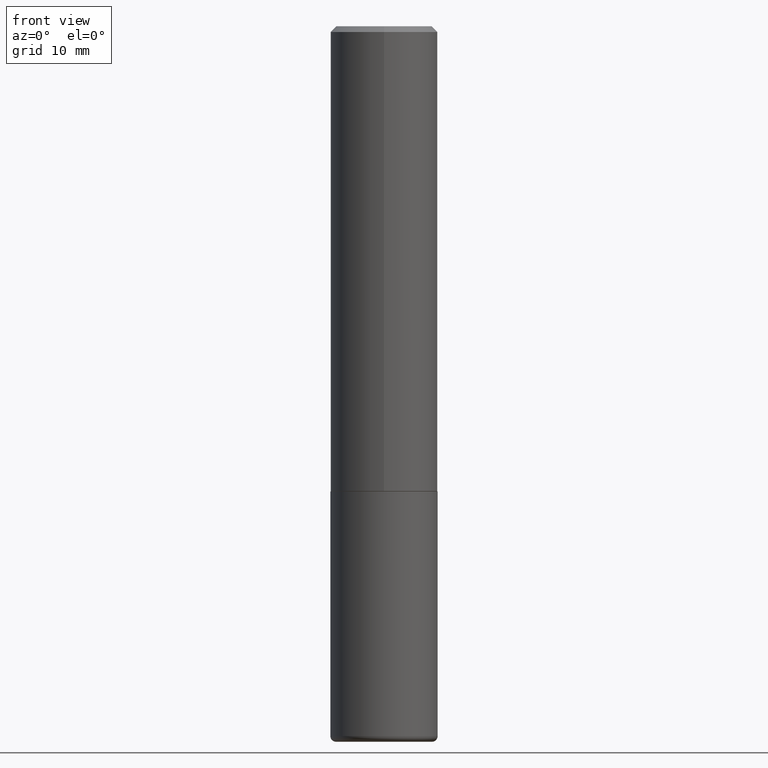
[diagram: clean part render]
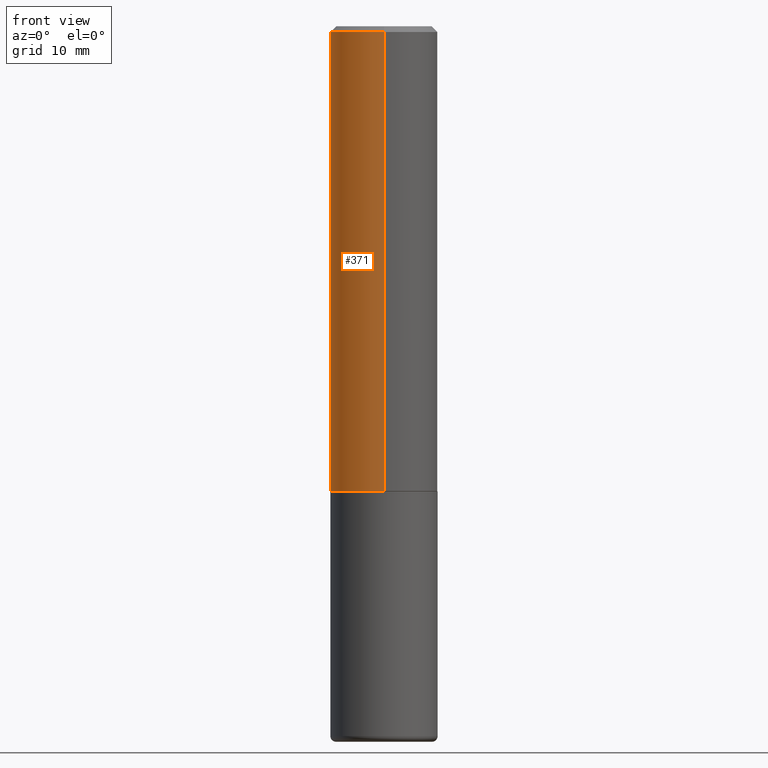
[diagram: same view with one face highlighted and labeled with its STEP entity id]
A machine part, front view. The second image highlights one B-rep face of the part: STEP entity #371.
In plain terms, the highlighted cylindrical surface (partial cylindrical patch) has radius 4.7625 mm, axis along (-0, 0, 1).
Its self-contained STEP definition (entity closure, byte-faithful):
#17 = ORIENTED_EDGE ( 'NONE', *, *, #253, .F. ) ;
#61 = CARTESIAN_POINT ( 'NONE',  ( -1.309305502066136748E-15, -0.1875000000000058842, -1.623999999999999666 ) ) ;
#76 = VERTEX_POINT ( 'NONE', #329 ) ;
#82 = CARTESIAN_POINT ( 'NONE',  ( 4.890661129501750808E-31, -6.983358616890472958E-17, -0.02000000000000004205 ) ) ;
#93 = ORIENTED_EDGE ( 'NONE', *, *, #418, .F. ) ;
#97 = DIRECTION ( 'NONE',  ( -6.982962677686265922E-15, -1.000000000000000000, 2.913971193241877216E-15 ) ) ;
#106 = CARTESIAN_POINT ( 'NONE',  ( 3.971216837155413830E-29, -5.670487196915053013E-15, -1.624000000000000110 ) ) ;
#108 = EDGE_CURVE ( 'NONE', #76, #378, #380, .T. ) ;
#110 = CARTESIAN_POINT ( 'NONE',  ( -1.309305502066175797E-15, -0.1875000000000001110, 6.546898703334808091E-16 ) ) ;
#114 = DIRECTION ( 'NONE',  ( -2.445330564750870114E-29, 3.491679308445229010E-15, 1.000000000000000000 ) ) ;
#121 = VERTEX_POINT ( 'NONE', #200 ) ;
#135 = AXIS2_PLACEMENT_3D ( 'NONE', #82, #180, #219 ) ;
#141 = CIRCLE ( 'NONE', #135, 0.1874999999999999722 ) ;
#143 = VECTOR ( 'NONE', #151, 39.37007874015748143 ) ;
#151 = DIRECTION ( 'NONE',  ( -2.445330564750870114E-29, 3.491679308445229010E-15, 1.000000000000000000 ) ) ;
#161 = DIRECTION ( 'NONE',  ( -2.445330564750870114E-29, 3.491679308445229010E-15, 1.000000000000000000 ) ) ;
#163 = CARTESIAN_POINT ( 'NONE',  ( 1.332267629550188440E-15, 0.1875000000000001110, -6.546898703334808091E-16 ) ) ;
#175 = VERTEX_POINT ( 'NONE', #397 ) ;
#180 = DIRECTION ( 'NONE',  ( -2.445330564750870114E-29, 3.491679308445229010E-15, 1.000000000000000000 ) ) ;
#189 = CYLINDRICAL_SURFACE ( 'NONE', #405, 0.1875000000000001110 ) ;
#190 = ORIENTED_EDGE ( 'NONE', *, *, #108, .T. ) ;
#200 = CARTESIAN_POINT ( 'NONE',  ( 1.309305502066175205E-15, 0.1874999999999999167, -0.02000000000000069431 ) ) ;
#219 = DIRECTION ( 'NONE',  ( -6.982962677686266711E-15, -1.000000000000000000, 3.483106191921935949E-15 ) ) ;
#235 = EDGE_LOOP ( 'NONE', ( #93, #190, #259, #17 ) ) ;
#242 = DIRECTION ( 'NONE',  ( -2.445330564750870114E-29, 3.491679308445229010E-15, 1.000000000000000000 ) ) ;
#253 = EDGE_CURVE ( 'NONE', #121, #175, #141, .T. ) ;
#255 = LINE ( 'NONE', #163, #143 ) ;
#259 = ORIENTED_EDGE ( 'NONE', *, *, #295, .T. ) ;
#277 = LINE ( 'NONE', #110, #413 ) ;
#283 = FACE_OUTER_BOUND ( 'NONE', #235, .T. ) ;
#295 = EDGE_CURVE ( 'NONE', #378, #175, #277, .T. ) ;
#308 = AXIS2_PLACEMENT_3D ( 'NONE', #106, #242, #97 ) ;
#312 = DIRECTION ( 'NONE',  ( -6.982962677686266711E-15, -1.000000000000000000, 3.491679308445229010E-15 ) ) ;
#329 = CARTESIAN_POINT ( 'NONE',  ( 1.332267629550208753E-15, 0.1874999999999945599, -1.624000000000000776 ) ) ;
#350 = CARTESIAN_POINT ( 'NONE',  ( 0.000000000000000000, 0.000000000000000000, 0.000000000000000000 ) ) ;
#371 = ADVANCED_FACE ( 'NONE', ( #283 ), #189, .T. ) ;
#378 = VERTEX_POINT ( 'NONE', #61 ) ;
#380 = CIRCLE ( 'NONE', #308, 0.1875000000000002220 ) ;
#397 = CARTESIAN_POINT ( 'NONE',  ( -1.286343374582161379E-15, -0.1875000000000000555, -0.01999999999999938979 ) ) ;
#405 = AXIS2_PLACEMENT_3D ( 'NONE', #350, #161, #312 ) ;
#413 = VECTOR ( 'NONE', #114, 39.37007874015748143 ) ;
#418 = EDGE_CURVE ( 'NONE', #76, #121, #255, .T. ) ;